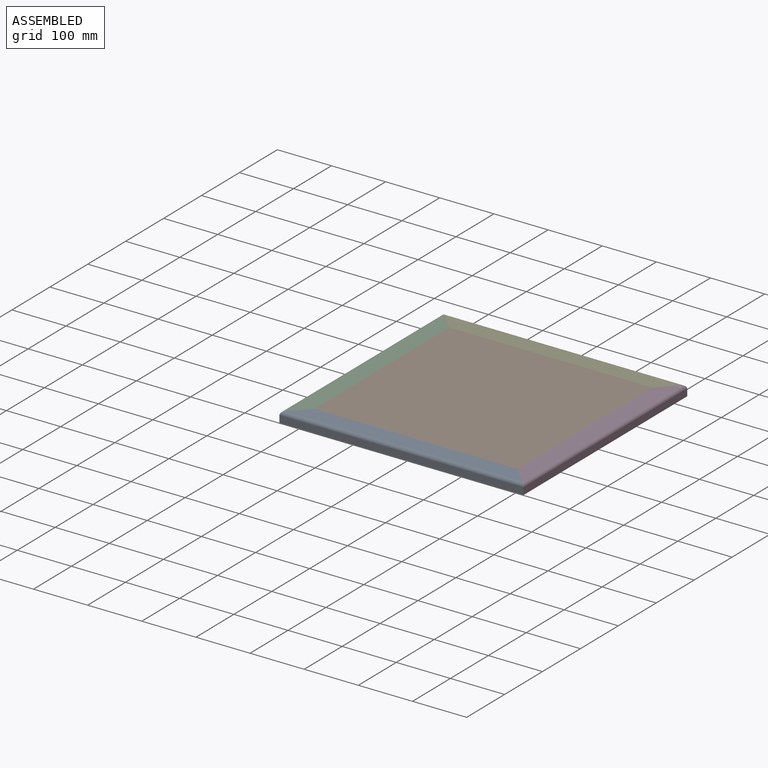
[diagram: assembled view]
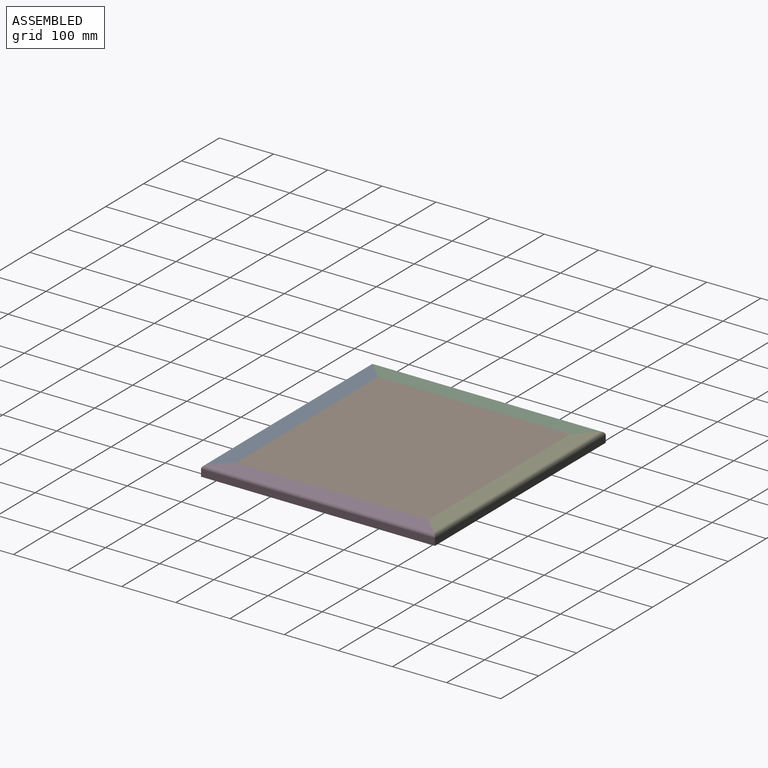
[diagram: assembled view, second angle]
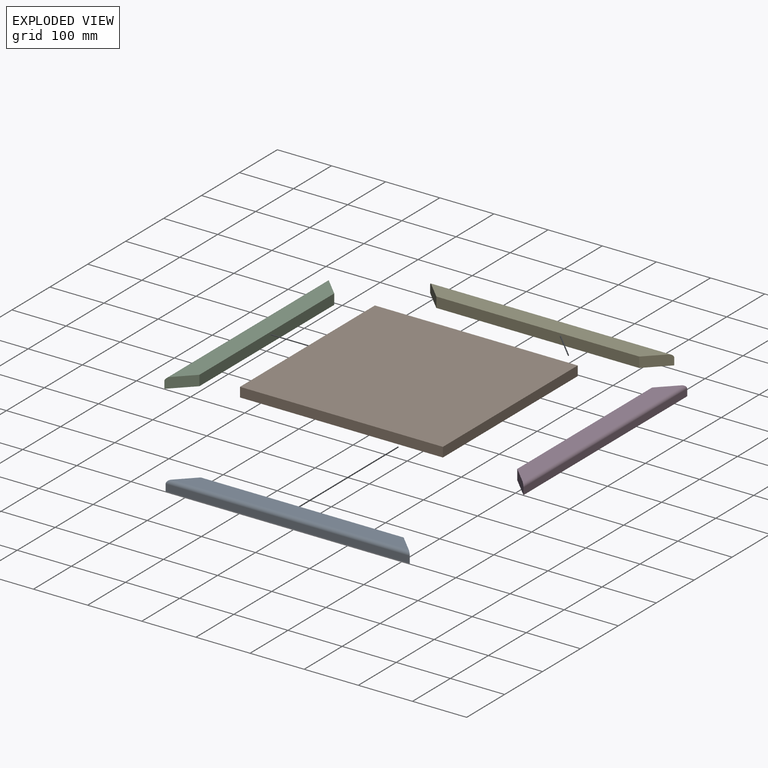
[diagram: exploded view]
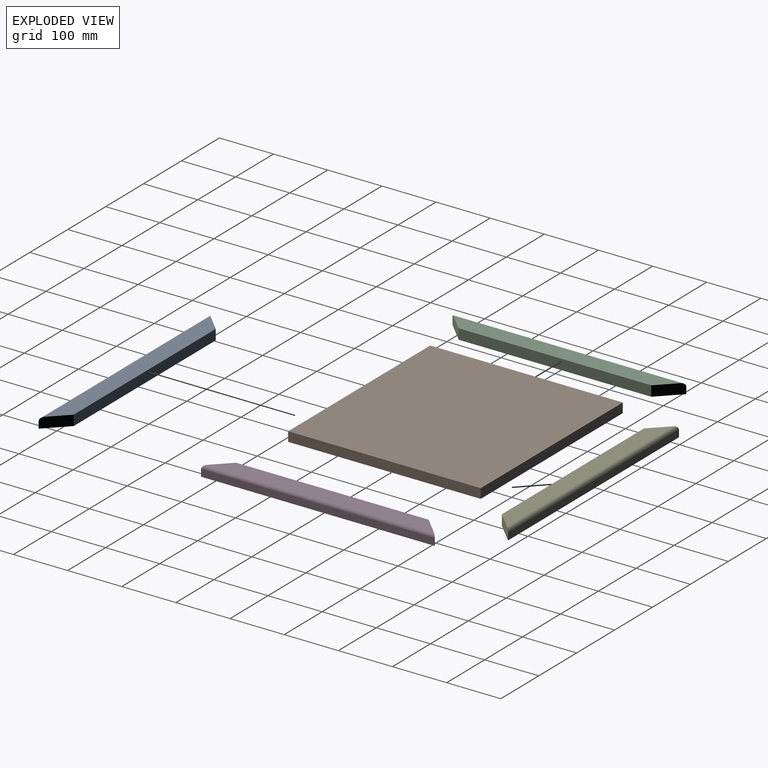
[diagram: exploded view, second angle]
ASSEMBLY  parts=5 mates=11
PART A: 7 faces, bbox 450.9x38.1x19.1 mm
  f0: plane 450.85x12.7mm, normal (0,1,0), area 5725.8mm2, adj f1,f3,f5,f6
  f1: plane 38.1x38.1mm, normal (-0.71,-0.71,0), area 1014.2mm2, adj f0,f2,f4,f5,f6
  f2: plane 374.65x19.05mm, normal (0,-1,0), area 7137.1mm2, adj f1,f3,f4,f5
  f3: plane 38.1x38.1mm, normal (0.71,-0.71,0), area 1014.2mm2, adj f0,f2,f4,f5,f6
  f4: plane 438.15x31.75mm, normal (0,0,1), area 12903.2mm2, adj f1,f2,f3,f6
  f5: plane 450.85x38.1mm, normal (0,0,-1), area 15725.8mm2, adj f0,f1,f2,f3
  f6: cylinder r=6.35mm len=450.85mm, axis (1,0,0), area 4451mm2, adj f0,f1,f3,f4
PART B: 6 faces, bbox 374.7x355.6x17.8 mm
  f0: plane 355.6x17.78mm, normal (-1,0,0), area 6322.6mm2, adj f1,f3,f4,f5
  f1: plane 374.65x17.78mm, normal (0,-1,0), area 6661.3mm2, adj f0,f2,f4,f5
  f2: plane 355.6x17.78mm, normal (1,0,0), area 6322.6mm2, adj f1,f3,f4,f5
  f3: plane 374.65x17.78mm, normal (0,1,0), area 6661.3mm2, adj f0,f2,f4,f5
  f4: plane 374.65x355.6mm, normal (0,0,1), area 133225.5mm2, adj f0,f1,f2,f3
  f5: plane 374.65x355.6mm, normal (0,0,-1), area 133225.5mm2, adj f0,f1,f2,f3
PART C: 7 faces, bbox 431.8x38.1x19.1 mm
  f0: plane 431.8x12.7mm, normal (0,1,0), area 5483.9mm2, adj f1,f3,f5,f6
  f1: plane 38.1x38.1mm, normal (-0.71,-0.71,0), area 1014.2mm2, adj f0,f2,f4,f5,f6
  f2: plane 355.6x19.05mm, normal (0,-1,0), area 6774.2mm2, adj f1,f3,f4,f5
  f3: plane 38.1x38.1mm, normal (0.71,-0.71,0), area 1014.2mm2, adj f0,f2,f4,f5,f6
  f4: plane 419.1x31.75mm, normal (0,0,1), area 12298.4mm2, adj f1,f2,f3,f6
  f5: plane 431.8x38.1mm, normal (0,0,-1), area 15000mm2, adj f0,f1,f2,f3
  f6: cylinder r=6.35mm len=431.8mm, axis (1,0,0), area 4261mm2, adj f0,f1,f3,f4
PART D: same geometry as C
PART E: same geometry as A
PLACE A rot(axis=(0,0,-1),180deg) t=(0.34,-196.6,-10.07)mm
PLACE B t=(0.34,0.25,-8.8)mm fixed
PLACE C rot(axis=(0,0,1),90deg) t=(-206.03,0.25,-10.07)mm
PLACE D rot(axis=(0,0,-1),90deg) t=(206.72,0.25,-10.07)mm
PLACE E t=(0.34,197.1,-10.07)mm
MATE planar E.f3 <-> D.f1  axis (0.71,-0.71,0) through (206.5,196.89,-0.65)mm
MATE fastened A.f3 <-> C.f1  axis (-0.71,0.71,0) through (-205.82,-196.38,-0.65)mm
MATE planar B.f4 <-> D.f4  axis (0,0,1) through (0.34,0.25,8.98)mm
MATE planar E.f1 <-> C.f3  axis (-0.71,-0.71,0) through (-205.82,196.89,-0.65)mm
MATE planar B.f2 <-> D.f2  axis (1,0,0) through (187.67,0.25,0.09)mm
MATE planar B.f4 <-> E.f4  axis (0,0,1) through (0.34,0.25,8.98)mm
MATE planar E.f2 <-> B.f3  axis (0,-1,0) through (0.34,178.05,-0.55)mm
MATE planar B.f0 <-> C.f2  axis (-1,0,0) through (-186.98,0.25,0.09)mm
MATE planar A.f2 <-> B.f1  axis (0,1,0) through (0.34,-177.55,-0.55)mm
MATE planar B.f4 <-> A.f4  axis (0,0,1) through (0.34,0.25,8.98)mm
MATE planar C.f4 <-> B.f4  axis (0,0,1) through (-203.29,0.25,8.98)mm
